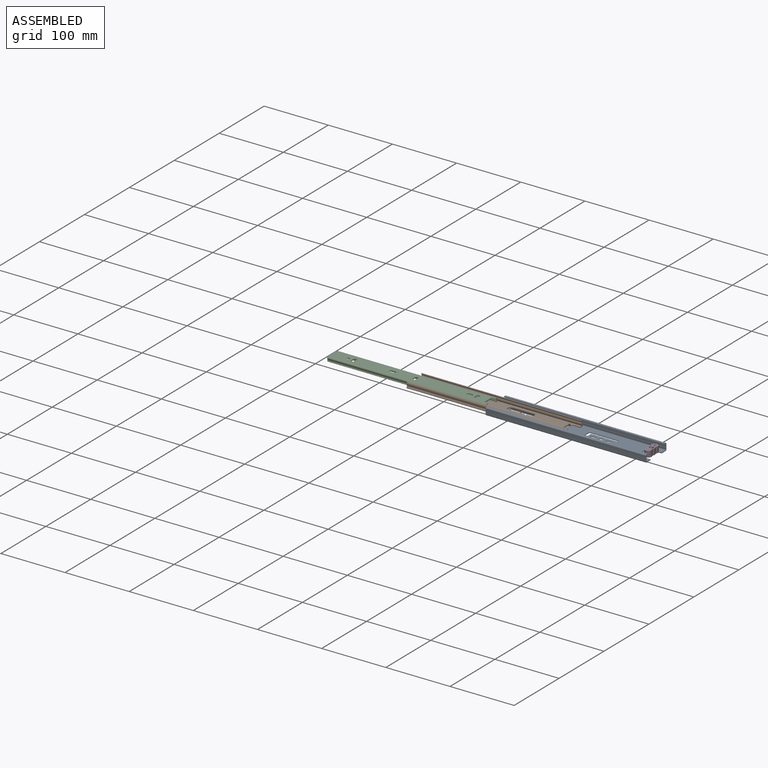
[diagram: assembled view]
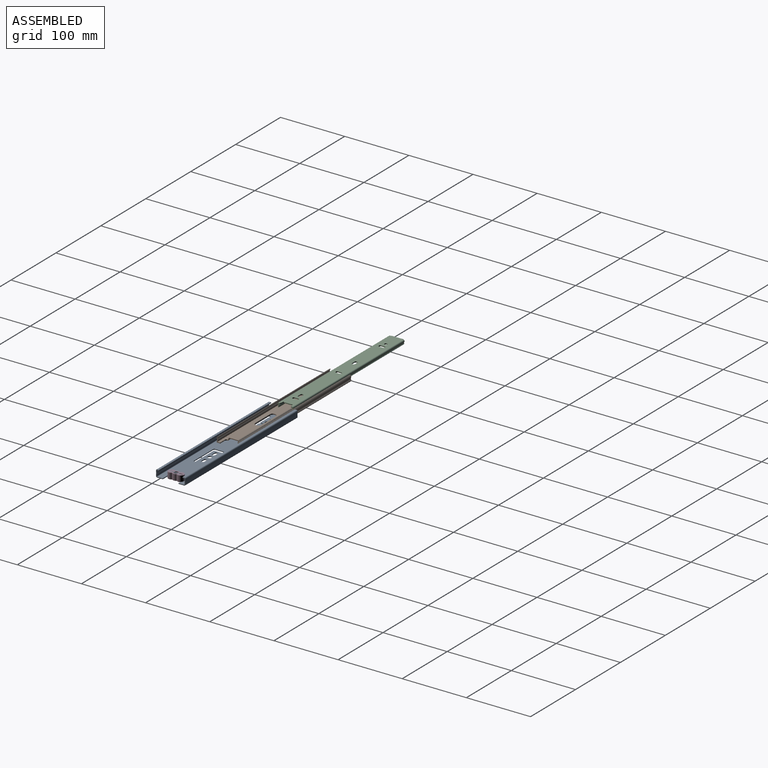
[diagram: assembled view, second angle]
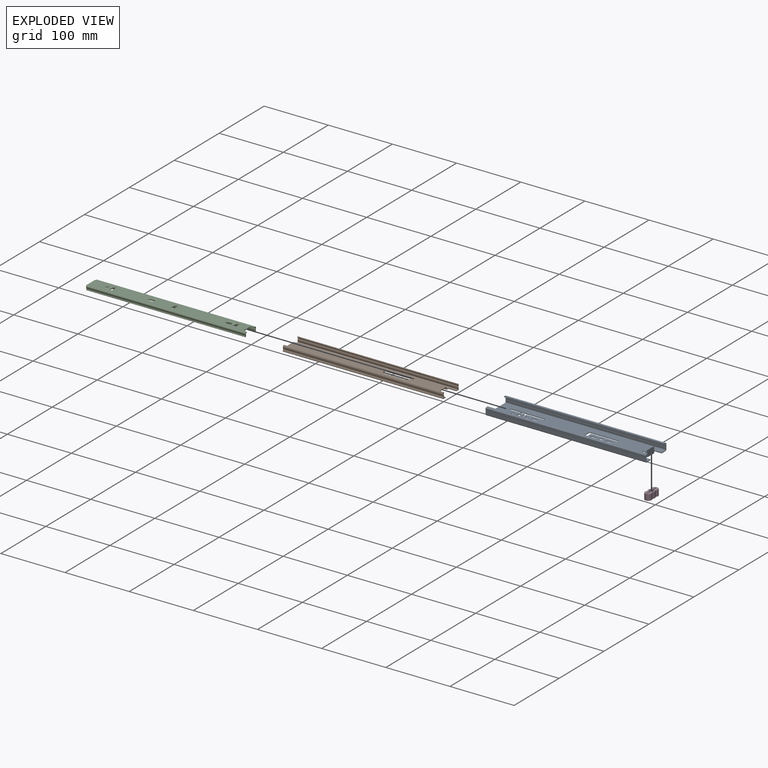
[diagram: exploded view]
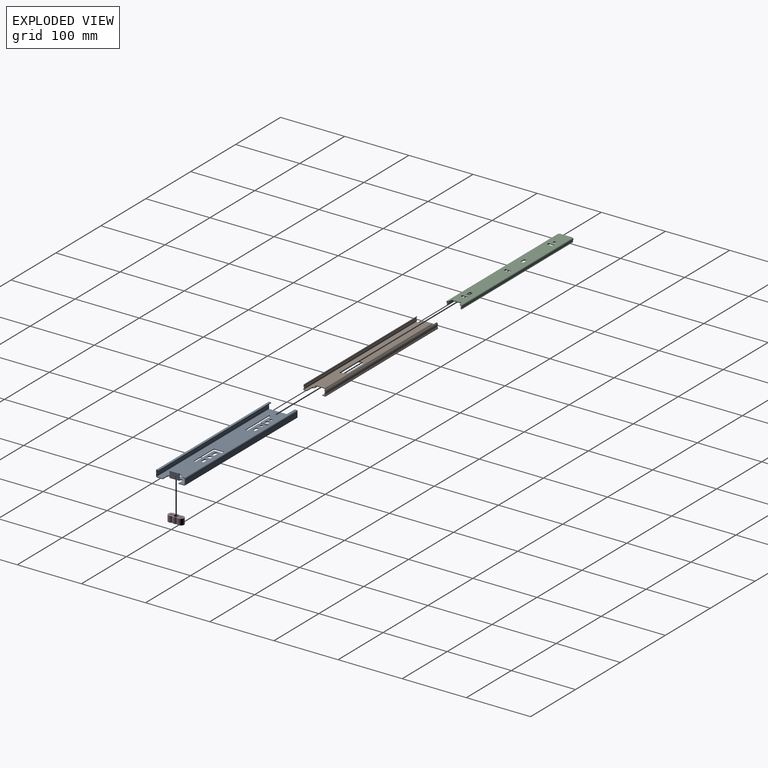
[diagram: exploded view, second angle]
ASSEMBLY  parts=4 mates=3
PART A: 85 faces, bbox 249.9x45.6x11.3 mm
  f0: plane 249.94x42.24mm, normal (0,0,1), area 9333.7mm2, adj f13,f14,f15,f17,f18,f19,f20,f21
  f1: plane 249.94x42.24mm, normal (0,0,-1), area 9354.6mm2, adj f2,f14,f15,f16,f17,f18,f19,f23
  f2: cylinder r=1.7mm len=249.94mm, axis (-1,0,0), area 679.3mm2, adj f1,f3,f14,f15
  f3: plane 249.94x4.64mm, normal (0,1,0.03), area 1159mm2, adj f2,f4,f14,f15
  f4: plane 249.94x3.4mm, normal (0,1,-0.04), area 849.3mm2, adj f3,f5,f14,f15
  f5: cylinder r=1.45mm len=249.94mm, axis (-1,0,0), area 581.3mm2, adj f4,f6,f14,f15
  f6: plane 249.94x2.96mm, normal (0,0,1), area 739.4mm2, adj f5,f7,f14,f15
  f7: plane 249.94x1.19mm, normal (0,-1,0), area 298.4mm2, adj f6,f8,f14,f15
  f8: plane 249.94x2.96mm, normal (0,0,-1), area 739.4mm2, adj f7,f9,f14,f15
  f9: cylinder r=0.25mm len=249.94mm, axis (-1,0,0), area 102mm2, adj f8,f10,f14,f15
  f10: plane 249.94x3.05mm, normal (0,-1,0.04), area 763mm2, adj f9,f11,f14,f15
  f11: cylinder r=2.54mm len=249.94mm, axis (-1,0,0), area 484.9mm2, adj f10,f12,f14,f15
  f12: plane 249.94x3.16mm, normal (0,-1,-0.03), area 790.5mm2, adj f11,f13,f14,f15
  f13: cylinder r=0.51mm len=249.94mm, axis (-1,0,0), area 202.8mm2, adj f0,f12,f14,f15
  f14: plane 11.28x10.62mm, normal (1,0,0), area 27.3mm2, adj f0,f1,f2,f3,f4,f5,f6,f7
  f15: plane 45.64x11.28mm, normal (-1,0,0), area 83.7mm2, adj f0,f1,f2,f3,f4,f5,f6,f7
  f16: plane 14.99x10.08mm, normal (1,0,0), area 151.1mm2, adj f1,f17,f20,f22,f66,f69
  f17: plane 1.43x1.19mm, normal (0.11,0.99,0), area 1.7mm2, adj f0,f1,f16,f18
  f18: cylinder r=2.29mm len=4.56mm, axis (0,0,1), area 8.3mm2, adj f0,f1,f17,f19
  f19: plane 9.4x1.19mm, normal (0,-1,0), area 11.2mm2, adj f0,f1,f14,f18
  f20: plane 8.89x1.4mm, normal (0,1,0), area 12.4mm2, adj f0,f16,f21,f22
  f21: plane 14.99x8.89mm, normal (-1,0,0), area 133.2mm2, adj f0,f20,f22,f69
  f22: plane 14.99x1.4mm, normal (0,0,1), area 20.9mm2, adj f16,f20,f21,f69
  f23: cylinder r=1.59mm len=3.18mm, axis (0,0,1), area 6mm2, adj f0,f1,f24,f31
  f24: plane 50.93x1.19mm, normal (0,-1,0), area 60.8mm2, adj f0,f1,f23,f25
  f25: cylinder r=1.59mm len=3.18mm, axis (0,0,1), area 6mm2, adj f0,f1,f24,f26
  f26: plane 24.83x1.19mm, normal (0,1,0), area 29.6mm2, adj f0,f1,f25,f27
  f27: cylinder r=0.76mm len=1.19mm, axis (0,0,1), area 1.4mm2, adj f0,f1,f26,f28
  f28: plane 12.7x1.19mm, normal (-1,0,0), area 15.2mm2, adj f0,f1,f27,f74
  f29: plane 12.7x1.19mm, normal (1,0,0), area 15.2mm2, adj f0,f1,f30,f75
  f30: cylinder r=0.76mm len=1.19mm, axis (0,0,1), area 1.4mm2, adj f0,f1,f29,f31
  f31: plane 22.29x1.19mm, normal (0,1,0), area 26.6mm2, adj f0,f1,f23,f30
  f32: cylinder r=2.29mm len=4.57mm, axis (0,0,1), area 17.1mm2, adj f0,f1
  f33: cylinder r=3.17mm len=6.35mm, axis (0,0,1), area 23.8mm2, adj f0,f1
  f34: cylinder r=2.29mm len=4.57mm, axis (0,0,1), area 17.1mm2, adj f0,f1
  f35: cylinder r=2.29mm len=4.57mm, axis (0,0,1), area 8.6mm2, adj f0,f1,f37,f77
  f36: cylinder r=2.29mm len=4.57mm, axis (0,0,1), area 8.6mm2, adj f0,f1,f37,f77
  f37: plane 4.95x1.19mm, normal (0,-1,0), area 5.9mm2, adj f0,f1,f35,f36
  f38: cylinder r=1.59mm len=3.18mm, axis (0,0,-1), area 6mm2, adj f0,f1,f39,f44
  f39: plane 43.24x1.19mm, normal (0,-1,0), area 51.6mm2, adj f0,f1,f38,f40
  f40: cylinder r=1.52mm len=1.52mm, axis (0,0,-1), area 2.9mm2, adj f0,f1,f39,f41
  f41: plane 17.53x1.19mm, normal (1,0,0), area 20.9mm2, adj f0,f1,f40,f80
  f42: plane 11.18x1.19mm, normal (-1,0,0), area 13.3mm2, adj f0,f1,f43,f81
  f43: cylinder r=1.52mm len=1.52mm, axis (0,0,-1), area 2.9mm2, adj f0,f1,f42,f44
  f44: plane 38.67x1.19mm, normal (0,1,0), area 46.2mm2, adj f0,f1,f38,f43
  f45: cylinder r=2.29mm len=4.57mm, axis (0,0,-1), area 8.6mm2, adj f0,f1,f46,f83
  f46: plane 4.95x1.19mm, normal (0,-1,0), area 5.9mm2, adj f0,f1,f45,f47
  f47: cylinder r=2.29mm len=4.57mm, axis (0,0,-1), area 8.6mm2, adj f0,f1,f46,f83
  f48: cylinder r=2.29mm len=4.57mm, axis (0,0,-1), area 8.6mm2, adj f0,f1,f49,f84
  f49: plane 4.95x1.19mm, normal (0,-1,0), area 5.9mm2, adj f0,f1,f48,f50
  f50: cylinder r=2.29mm len=4.57mm, axis (0,0,-1), area 8.6mm2, adj f0,f1,f49,f84
  f51: cylinder r=3.17mm len=6.35mm, axis (0,0,-1), area 23.8mm2, adj f0,f1
  f52: cylinder r=3.17mm len=6.35mm, axis (0,0,-1), area 23.8mm2, adj f0,f1
  f53: cylinder r=1.7mm len=249.94mm, axis (-1,0,0), area 679.3mm2, adj f1,f15,f54,f65
  f54: plane 249.94x4.64mm, normal (0,-1,0.03), area 1159mm2, adj f15,f53,f55,f65
  f55: plane 249.94x3.4mm, normal (0,-1,-0.04), area 849.3mm2, adj f15,f54,f56,f65
  f56: cylinder r=1.45mm len=249.94mm, axis (-1,0,0), area 581.3mm2, adj f15,f55,f57,f65
  f57: plane 249.94x2.96mm, normal (0,0,1), area 739.4mm2, adj f15,f56,f58,f65
  f58: plane 249.94x1.19mm, normal (0,1,0), area 298.4mm2, adj f15,f57,f59,f65
  f59: plane 249.94x2.96mm, normal (0,0,-1), area 739.4mm2, adj f15,f58,f60,f65
  f60: cylinder r=0.25mm len=249.94mm, axis (-1,0,0), area 102mm2, adj f15,f59,f61,f65
  f61: plane 249.94x3.05mm, normal (0,1,0.04), area 763mm2, adj f15,f60,f62,f65
  f62: cylinder r=2.54mm len=249.94mm, axis (-1,0,0), area 484.9mm2, adj f15,f61,f63,f65
  f63: plane 249.94x3.16mm, normal (0,1,-0.03), area 790.5mm2, adj f15,f62,f64,f65
  f64: cylinder r=0.51mm len=249.94mm, axis (-1,0,0), area 202.8mm2, adj f0,f15,f63,f65
  f65: plane 11.28x10.62mm, normal (1,0,0), area 27.3mm2, adj f0,f1,f53,f54,f55,f56,f57,f58
  f66: plane 1.43x1.19mm, normal (0.11,-0.99,0), area 1.7mm2, adj f0,f1,f16,f67
  f67: cylinder r=2.29mm len=4.56mm, axis (0,0,1), area 8.3mm2, adj f0,f1,f66,f68
  f68: plane 9.4x1.19mm, normal (0,1,0), area 11.2mm2, adj f0,f1,f65,f67
  f69: plane 8.89x1.4mm, normal (0,-1,0), area 12.4mm2, adj f0,f16,f21,f22
  f70: cylinder r=1.59mm len=3.18mm, axis (0,0,1), area 6mm2, adj f0,f1,f71,f76
  f71: plane 50.93x1.19mm, normal (0,1,0), area 60.8mm2, adj f0,f1,f70,f72
  f72: cylinder r=1.59mm len=3.18mm, axis (0,0,1), area 6mm2, adj f0,f1,f71,f73
  f73: plane 24.83x1.19mm, normal (0,-1,0), area 29.6mm2, adj f0,f1,f72,f74
  f74: cylinder r=0.76mm len=1.19mm, axis (0,0,1), area 1.4mm2, adj f0,f1,f28,f73
  f75: cylinder r=0.76mm len=1.19mm, axis (0,0,1), area 1.4mm2, adj f0,f1,f29,f76
  f76: plane 22.29x1.19mm, normal (0,-1,0), area 26.6mm2, adj f0,f1,f70,f75
  f77: plane 4.95x1.19mm, normal (0,1,0), area 5.9mm2, adj f0,f1,f35,f36
  f78: cylinder r=1.59mm len=3.18mm, axis (0,0,-1), area 6mm2, adj f0,f1,f79,f82
  f79: plane 43.24x1.19mm, normal (0,1,0), area 51.6mm2, adj f0,f1,f78,f80
  f80: cylinder r=1.52mm len=1.52mm, axis (0,0,-1), area 2.9mm2, adj f0,f1,f41,f79
  f81: cylinder r=1.52mm len=1.52mm, axis (0,0,-1), area 2.9mm2, adj f0,f1,f42,f82
  f82: plane 38.67x1.19mm, normal (0,-1,0), area 46.2mm2, adj f0,f1,f78,f81
  f83: plane 4.95x1.19mm, normal (0,1,0), area 5.9mm2, adj f0,f1,f45,f47
  f84: plane 4.95x1.19mm, normal (0,1,0), area 5.9mm2, adj f0,f1,f48,f50
PART B: 42 faces, bbox 249.9x35.2x9.3 mm
  f0: plane 237.24x12.23mm, normal (0,0,-1), area 2522.8mm2, adj f1,f17,f19,f21,f22,f23,f24,f41
  f1: cylinder r=0.76mm len=237.24mm, axis (-1,0,0), area 205.1mm2, adj f0,f2,f17,f19
  f2: plane 237.24x1.97mm, normal (0,-0.91,-0.42), area 516.2mm2, adj f1,f3,f17,f19
  f3: cylinder r=1.98mm len=237.24mm, axis (-1,0,0), area 533.2mm2, adj f2,f4,f17,f19
  f4: plane 249.94x6.86mm, normal (0,0,-1), area 1682.4mm2, adj f3,f5,f16,f17,f18,f19,f20
  f5: cylinder r=1.22mm len=249.94mm, axis (-1,0,0), area 698.7mm2, adj f4,f6,f16,f17
  f6: cylinder r=2.51mm len=249.94mm, axis (-1,0,0), area 734.3mm2, adj f5,f7,f16,f17
  f7: cylinder r=3.52mm len=249.94mm, axis (-1,0,0), area 1279.5mm2, adj f6,f8,f16,f17
  f8: plane 249.94x1.03mm, normal (0,-0.84,0.54), area 304.7mm2, adj f7,f9,f16,f17
  f9: cylinder r=2.3mm len=249.94mm, axis (-1,0,0), area 836mm2, adj f8,f10,f16,f17
  f10: cylinder r=3.73mm len=249.94mm, axis (-1,0,0), area 1091.1mm2, adj f9,f11,f16,f17
  f11: plane 249.94x6.86mm, normal (0,0,1), area 1682.4mm2, adj f10,f12,f16,f17,f18,f19,f20
  f12: cylinder r=0.76mm len=237.24mm, axis (-1,0,0), area 205.1mm2, adj f11,f13,f17,f19
  f13: plane 237.24x1.97mm, normal (0,0.91,0.42), area 516.2mm2, adj f12,f14,f17,f19
  f14: cylinder r=1.98mm len=237.24mm, axis (-1,0,0), area 533.2mm2, adj f13,f15,f17,f19
  f15: plane 237.24x12.23mm, normal (0,0,1), area 2522.8mm2, adj f14,f17,f19,f21,f22,f23,f37,f41
  f16: plane 9.27x5.53mm, normal (1,0,0), area 16.6mm2, adj f4,f5,f6,f7,f8,f9,f10,f11
  f17: plane 35.19x9.27mm, normal (-1,0,0), area 67.2mm2, adj f0,f1,f2,f3,f4,f5,f6,f7
  f18: cylinder r=2.54mm len=2.54mm, axis (0,0,1), area 4.9mm2, adj f4,f11,f19,f20
  f19: plane 19.05x4.78mm, normal (1,0,0), area 27.8mm2, adj f0,f1,f2,f3,f4,f11,f12,f13
  f20: plane 10.16x1.22mm, normal (0,-1,0), area 12.4mm2, adj f4,f11,f16,f18
  f21: cylinder r=4.83mm len=9.65mm, axis (0,0,1), area 18.5mm2, adj f0,f15,f22,f41
  f22: plane 31.69x1.22mm, normal (0,-1,0), area 38.6mm2, adj f0,f15,f21,f23
  f23: cylinder r=4.83mm len=9.65mm, axis (0,0,1), area 18.5mm2, adj f0,f15,f22,f41
  f24: cylinder r=0.76mm len=237.24mm, axis (-1,0,0), area 205.1mm2, adj f0,f17,f19,f25
  f25: plane 237.24x1.97mm, normal (0,0.91,-0.42), area 516.2mm2, adj f17,f19,f24,f26
  f26: cylinder r=1.98mm len=237.24mm, axis (-1,0,0), area 533.2mm2, adj f17,f19,f25,f27
  f27: plane 249.94x6.86mm, normal (0,0,-1), area 1682.4mm2, adj f17,f19,f26,f28,f38,f39,f40
  f28: cylinder r=1.22mm len=249.94mm, axis (-1,0,0), area 698.7mm2, adj f17,f27,f29,f38
  f29: cylinder r=2.51mm len=249.94mm, axis (-1,0,0), area 734.3mm2, adj f17,f28,f30,f38
  f30: cylinder r=3.52mm len=249.94mm, axis (-1,0,0), area 1279.5mm2, adj f17,f29,f31,f38
  f31: plane 249.94x1.03mm, normal (0,0.84,0.54), area 304.7mm2, adj f17,f30,f32,f38
  f32: cylinder r=2.3mm len=249.94mm, axis (-1,0,0), area 836mm2, adj f17,f31,f33,f38
  f33: cylinder r=3.73mm len=249.94mm, axis (-1,0,0), area 1091.1mm2, adj f17,f32,f34,f38
  f34: plane 249.94x6.86mm, normal (0,0,1), area 1682.4mm2, adj f17,f19,f33,f35,f38,f39,f40
  f35: cylinder r=0.76mm len=237.24mm, axis (-1,0,0), area 205.1mm2, adj f17,f19,f34,f36
  f36: plane 237.24x1.97mm, normal (0,-0.91,0.42), area 516.2mm2, adj f17,f19,f35,f37
  f37: cylinder r=1.98mm len=237.24mm, axis (-1,0,0), area 533.2mm2, adj f15,f17,f19,f36
  f38: plane 9.27x5.53mm, normal (1,0,0), area 16.6mm2, adj f27,f28,f29,f30,f31,f32,f33,f34
  f39: cylinder r=2.54mm len=2.54mm, axis (0,0,1), area 4.9mm2, adj f19,f27,f34,f40
  f40: plane 10.16x1.22mm, normal (0,1,0), area 12.4mm2, adj f27,f34,f38,f39
  f41: plane 31.69x1.22mm, normal (0,1,0), area 38.6mm2, adj f0,f15,f21,f23
PART C: 58 faces, bbox 249.9x24.3x6.8 mm
  f0: plane 248.29x21.25mm, normal (0,0,-1), area 4975.3mm2, adj f1,f11,f12,f13,f18,f19,f20,f21
  f1: cylinder r=0.13mm len=248.03mm, axis (-1,0,0), area 49.5mm2, adj f0,f2,f11,f12
  f2: plane 248.03x0.37mm, normal (0,-1,0), area 92.5mm2, adj f1,f3,f11,f12
  f3: cylinder r=0.13mm len=248.03mm, axis (-1,0,0), area 20.6mm2, adj f2,f4,f11,f12
  f4: cylinder r=3.81mm len=248.03mm, axis (-1,0,0), area 1283.1mm2, adj f3,f5,f11,f12
  f5: plane 248.03x1.07mm, normal (0,0.65,-0.76), area 346.5mm2, adj f4,f6,f11,f12
  f6: cylinder r=2.41mm len=248.03mm, axis (-1,0,0), area 812.4mm2, adj f5,f7,f11,f12
  f7: cylinder r=1.52mm len=248.03mm, axis (-1,0,0), area 247.4mm2, adj f6,f8,f11,f12
  f8: plane 248.03x0.37mm, normal (0,1,0), area 92.5mm2, adj f7,f9,f11,f12
  f9: cylinder r=1.52mm len=248.03mm, axis (-1,0,0), area 593.8mm2, adj f8,f10,f11,f12
  f10: plane 248.29x21.25mm, normal (0,0,1), area 4975.3mm2, adj f9,f11,f12,f17,f18,f19,f20,f21
  f11: plane 6.76x3.56mm, normal (1,0,0), area 11.8mm2, adj f0,f1,f2,f3,f4,f5,f6,f7
  f12: plane 6.76x3.26mm, normal (-1,0,0), area 11.4mm2, adj f0,f1,f2,f3,f4,f5,f6,f7
  f13: cylinder r=0.25mm len=17.78mm, axis (0,-1,0), area 7.1mm2, adj f0,f14,f18,f49
  f14: plane 17.78x5.11mm, normal (1,0,0), area 90.8mm2, adj f13,f15,f18,f49
  f15: plane 17.78x1.4mm, normal (0,0,-1), area 24.8mm2, adj f14,f16,f18,f49
  f16: plane 17.78x5.11mm, normal (-1,0,0), area 90.8mm2, adj f15,f17,f18,f49
  f17: cylinder r=1.65mm len=17.78mm, axis (0,-1,0), area 46.1mm2, adj f10,f16,f18,f49
  f18: plane 6.76x1.91mm, normal (0,1,0), area 9.6mm2, adj f0,f10,f12,f13,f14,f15,f16,f17
  f19: cylinder r=0.63mm len=1.4mm, axis (0,0,1), area 2.6mm2, adj f0,f10,f20,f21
  f20: plane 5.86x1.4mm, normal (0.23,-0.97,0), area 8.4mm2, adj f0,f10,f11,f19
  f21: plane 5.97x1.4mm, normal (1,0,0), area 8.3mm2, adj f0,f10,f19,f52
  f22: cylinder r=2.18mm len=4.37mm, axis (0,0,1), area 19.2mm2, adj f0,f10
  f23: cylinder r=2.18mm len=4.37mm, axis (0,0,1), area 9.6mm2, adj f0,f10,f24,f25
  f24: plane 5.28x1.4mm, normal (-1,0,0), area 7.4mm2, adj f0,f10,f23,f53
  f25: plane 5.28x1.4mm, normal (1,0,0), area 7.4mm2, adj f0,f10,f23,f53
  f26: cylinder r=2.29mm len=4.57mm, axis (0,0,1), area 10mm2, adj f0,f10,f27,f54
  f27: plane 4.95x1.4mm, normal (0,-1,0), area 6.9mm2, adj f0,f10,f26,f28
  f28: cylinder r=2.29mm len=4.57mm, axis (0,0,1), area 10mm2, adj f0,f10,f27,f54
  f29: cylinder r=2.18mm len=4.37mm, axis (0,0,1), area 9.6mm2, adj f0,f10,f30,f31
  f30: plane 5.28x1.4mm, normal (-1,0,0), area 7.4mm2, adj f0,f10,f29,f55
  f31: plane 5.28x1.4mm, normal (1,0,0), area 7.4mm2, adj f0,f10,f29,f55
  f32: plane 5.28x1.4mm, normal (1,0,0), area 7.4mm2, adj f0,f10,f33,f56
  f33: cylinder r=2.18mm len=4.37mm, axis (0,0,1), area 9.6mm2, adj f0,f10,f32,f34
  f34: plane 5.28x1.4mm, normal (-1,0,0), area 7.4mm2, adj f0,f10,f33,f56
  f35: cylinder r=2.29mm len=4.57mm, axis (0,0,1), area 10mm2, adj f0,f10,f36,f57
  f36: plane 4.95x1.4mm, normal (0,-1,0), area 6.9mm2, adj f0,f10,f35,f37
  f37: cylinder r=2.29mm len=4.57mm, axis (0,0,1), area 10mm2, adj f0,f10,f36,f57
  f38: cylinder r=0.13mm len=248.03mm, axis (-1,0,0), area 49.5mm2, adj f0,f39,f47,f48
  f39: plane 248.03x0.37mm, normal (0,1,0), area 92.5mm2, adj f38,f40,f47,f48
  f40: cylinder r=0.13mm len=248.03mm, axis (-1,0,0), area 20.6mm2, adj f39,f41,f47,f48
  f41: cylinder r=3.81mm len=248.03mm, axis (-1,0,0), area 1283.1mm2, adj f40,f42,f47,f48
  f42: plane 248.03x1.07mm, normal (0,-0.65,-0.76), area 346.5mm2, adj f41,f43,f47,f48
  f43: cylinder r=2.41mm len=248.03mm, axis (-1,0,0), area 812.4mm2, adj f42,f44,f47,f48
  f44: cylinder r=1.52mm len=248.03mm, axis (-1,0,0), area 247.4mm2, adj f43,f45,f47,f48
  f45: plane 248.03x0.37mm, normal (0,-1,0), area 92.5mm2, adj f44,f46,f47,f48
  f46: cylinder r=1.52mm len=248.03mm, axis (-1,0,0), area 593.8mm2, adj f10,f45,f47,f48
  f47: plane 6.76x3.56mm, normal (1,0,0), area 11.8mm2, adj f0,f10,f38,f39,f40,f41,f42,f43
  f48: plane 6.76x3.26mm, normal (-1,0,0), area 11.4mm2, adj f0,f10,f38,f39,f40,f41,f42,f43
  f49: plane 6.76x1.91mm, normal (0,-1,0), area 9.6mm2, adj f0,f10,f13,f14,f15,f16,f17,f48
  f50: cylinder r=0.63mm len=1.4mm, axis (0,0,1), area 2.6mm2, adj f0,f10,f51,f52
  f51: plane 5.86x1.4mm, normal (0.23,0.97,0), area 8.4mm2, adj f0,f10,f47,f50
  f52: plane 5.97x1.4mm, normal (1,0,0), area 8.3mm2, adj f0,f10,f21,f50
  f53: cylinder r=2.18mm len=4.37mm, axis (0,0,1), area 9.6mm2, adj f0,f10,f24,f25
  f54: plane 4.95x1.4mm, normal (0,1,0), area 6.9mm2, adj f0,f10,f26,f28
  f55: cylinder r=2.18mm len=4.37mm, axis (0,0,1), area 9.6mm2, adj f0,f10,f30,f31
  f56: cylinder r=2.18mm len=4.37mm, axis (0,0,1), area 9.6mm2, adj f0,f10,f32,f34
  f57: plane 4.95x1.4mm, normal (0,1,0), area 6.9mm2, adj f0,f10,f35,f37
PART D: 18 faces, bbox 10.2x24.6x9.4 mm
  f0: cylinder r=3.17mm len=9.4mm, axis (0,0,-1), area 80.2mm2, adj f1,f10,f11,f12
  f1: plane 9.4x6.75mm, normal (1,0,0), area 63.4mm2, adj f0,f2,f10,f11
  f2: plane 9.4x1.43mm, normal (0,-1,0), area 13.4mm2, adj f1,f3,f10,f11
  f3: plane 9.4x6.75mm, normal (-1,0,0), area 63.4mm2, adj f2,f4,f10,f11
  f4: cylinder r=3.17mm len=9.4mm, axis (0,0,-1), area 80.2mm2, adj f3,f10,f11,f14
  f5: cylinder r=5.08mm len=9.4mm, axis (0,0,-1), area 54.7mm2, adj f6,f10,f11,f15
  f6: cylinder r=1.59mm len=9.4mm, axis (0,0,-1), area 17.1mm2, adj f5,f7,f10,f11
  f7: cylinder r=5.08mm len=10.16mm, axis (0,0,-1), area 204.6mm2, adj f6,f8,f10,f11
  f8: cylinder r=1.59mm len=9.4mm, axis (0,0,-1), area 17.1mm2, adj f7,f9,f10,f11
  f9: cylinder r=5.08mm len=9.4mm, axis (0,0,-1), area 54.7mm2, adj f8,f10,f11,f17
  f10: plane 24.61x10.16mm, normal (0,0,1), area 164.6mm2, adj f0,f1,f2,f3,f4,f5,f6,f7
  f11: plane 24.61x10.16mm, normal (0,0,-1), area 164.6mm2, adj f0,f1,f2,f3,f4,f5,f6,f7
  f12: plane 9.4x6.75mm, normal (1,0,0), area 63.4mm2, adj f0,f10,f11,f13
  f13: plane 9.4x1.43mm, normal (0,1,0), area 13.4mm2, adj f10,f11,f12,f14
  f14: plane 9.4x6.75mm, normal (-1,0,0), area 63.4mm2, adj f4,f10,f11,f13
  f15: cylinder r=1.59mm len=9.4mm, axis (0,0,-1), area 17.1mm2, adj f5,f10,f11,f16
  f16: cylinder r=5.08mm len=10.16mm, axis (0,0,-1), area 204.6mm2, adj f10,f11,f15,f17
  f17: cylinder r=1.59mm len=9.4mm, axis (0,0,-1), area 17.1mm2, adj f9,f10,f11,f16
PLACE A rot(axis=(-0.32,0.75,-0.58),0deg) t=(-23.7,-0.06,7.16)mm fixed
PLACE B rot(axis=(-0.32,0.75,-0.58),0deg) t=(-29.05,0.2,7.06)mm
PLACE C rot(axis=(-0.32,0.75,-0.58),0deg) t=(-25.6,-0.46,4.81)mm
PLACE D rot(axis=(-0.32,0.75,-0.58),0deg) t=(-23.7,2.29,6.14)mm
MATE slider B.f38 <-> A.f65  axis (1,0,0) through (-25.73,-15.43,12.8)mm
MATE slider C.f48 <-> B.f17  axis (-1,0,0) through (-402.66,-12.37,6.01)mm
MATE fastened D.f13 <-> A.f69  axis (0,1,0) through (92.37,-7.56,11.6)mm
